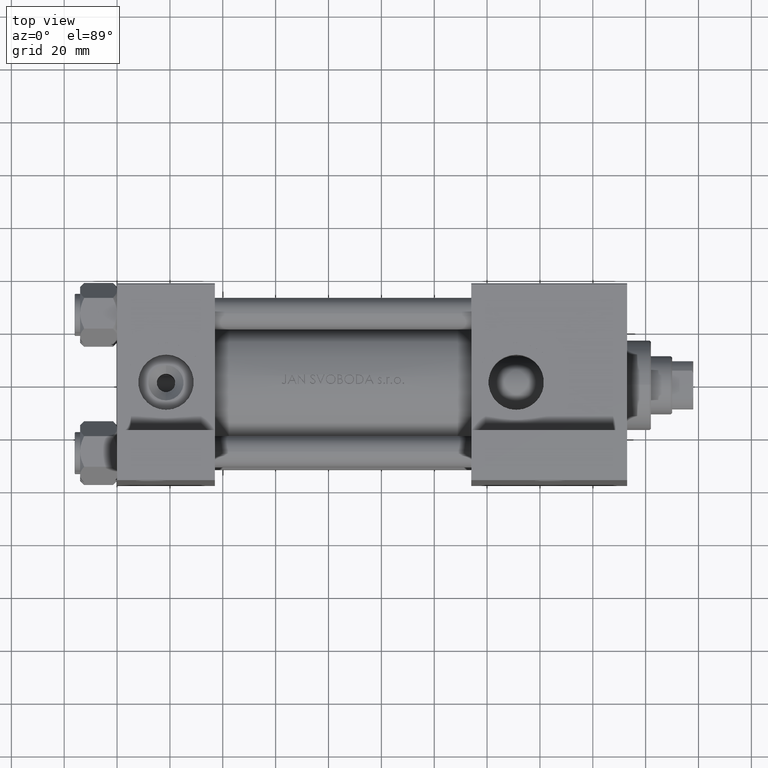
[diagram: clean part render]
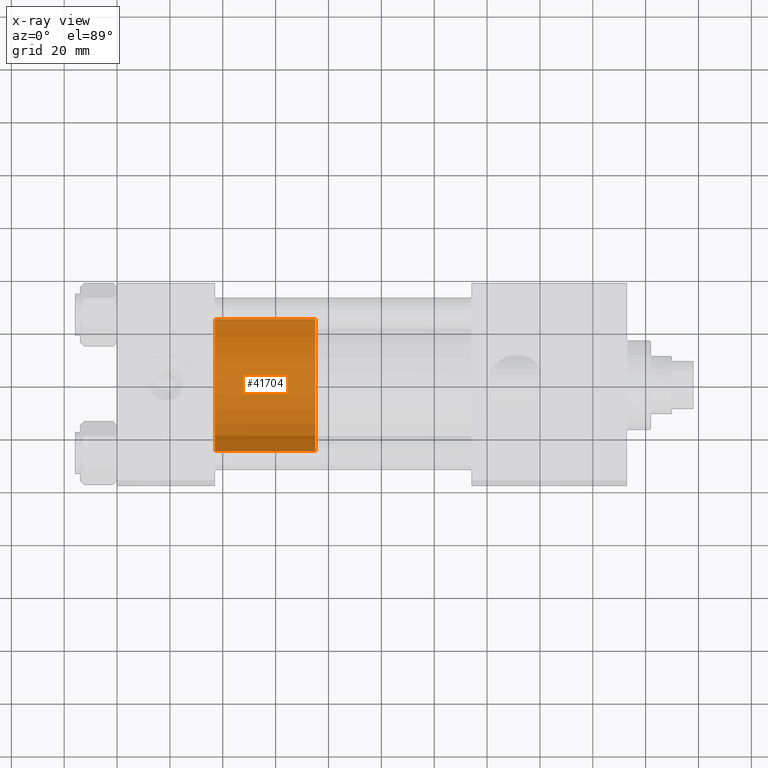
[diagram: x-ray — body ghosted, one internal face saturated and labeled with its STEP entity id]
A machine part, top view, then the same camera in x-ray: the body is ghosted and one INTERNAL B-rep face — a face not visible from any outside direction — is saturated and labeled: STEP entity #41704.
In plain terms, the highlighted cylindrical surface (partial cylindrical patch) has radius 25 mm, axis along (-1, 0, 0).
Its self-contained STEP definition (entity closure, byte-faithful):
#1890 = VERTEX_POINT ( 'NONE', #19047 ) ;
#2265 = CARTESIAN_POINT ( 'NONE',  ( -25.00000000000000000, 0.000000000000000000, 38.00000000000000000 ) ) ;
#4169 = DIRECTION ( 'NONE',  ( 1.000000000000000000, 0.000000000000000000, 0.000000000000000000 ) ) ;
#7254 = DIRECTION ( 'NONE',  ( -0.000000000000000000, -0.000000000000000000, -1.000000000000000000 ) ) ;
#8603 = CARTESIAN_POINT ( 'NONE',  ( 0.000000000000000000, 0.000000000000000000, 38.00000000000000000 ) ) ;
#10233 = LINE ( 'NONE', #2265, #17554 ) ;
#11240 = AXIS2_PLACEMENT_3D ( 'NONE', #19830, #35054, #4169 ) ;
#11268 = EDGE_CURVE ( 'NONE', #26219, #34314, #26096, .T. ) ;
#12834 = DIRECTION ( 'NONE',  ( 1.000000000000000000, 0.000000000000000000, 0.000000000000000000 ) ) ;
#15113 = EDGE_CURVE ( 'NONE', #1890, #28126, #10233, .T. ) ;
#15766 = EDGE_CURVE ( 'NONE', #34314, #28126, #18383, .T. ) ;
#17554 = VECTOR ( 'NONE', #39634, 1000.000000000000000 ) ;
#17621 = ORIENTED_EDGE ( 'NONE', *, *, #15766, .T. ) ;
#18383 = CIRCLE ( 'NONE', #11240, 25.00000000000000000 ) ;
#18599 = DIRECTION ( 'NONE',  ( -0.000000000000000000, -0.000000000000000000, -1.000000000000000000 ) ) ;
#18935 = CARTESIAN_POINT ( 'NONE',  ( 0.000000000000000000, 0.000000000000000000, 38.00000000000000000 ) ) ;
#19047 = CARTESIAN_POINT ( 'NONE',  ( -25.00000000000000000, 0.000000000000000000, 38.00000000000000000 ) ) ;
#19830 = CARTESIAN_POINT ( 'NONE',  ( 0.000000000000000000, 0.000000000000000000, 0.000000000000000000 ) ) ;
#21710 = ORIENTED_EDGE ( 'NONE', *, *, #15113, .F. ) ;
#22531 = CARTESIAN_POINT ( 'NONE',  ( -25.00000000000000000, 0.000000000000000000, 0.000000000000000000 ) ) ;
#22930 = CYLINDRICAL_SURFACE ( 'NONE', #45187, 25.00000000000000000 ) ;
#23931 = AXIS2_PLACEMENT_3D ( 'NONE', #8603, #24056, #12834 ) ;
#24056 = DIRECTION ( 'NONE',  ( 0.000000000000000000, 0.000000000000000000, 1.000000000000000000 ) ) ;
#24193 = EDGE_LOOP ( 'NONE', ( #44148, #31703, #17621, #21710 ) ) ;
#26096 = LINE ( 'NONE', #41284, #32577 ) ;
#26219 = VERTEX_POINT ( 'NONE', #29882 ) ;
#28126 = VERTEX_POINT ( 'NONE', #22531 ) ;
#29882 = CARTESIAN_POINT ( 'NONE',  ( 25.00000000000000000, 3.061616997868383043E-15, 38.00000000000000000 ) ) ;
#31703 = ORIENTED_EDGE ( 'NONE', *, *, #11268, .T. ) ;
#31899 = CIRCLE ( 'NONE', #23931, 25.00000000000000000 ) ;
#32577 = VECTOR ( 'NONE', #18599, 1000.000000000000000 ) ;
#34314 = VERTEX_POINT ( 'NONE', #48892 ) ;
#35054 = DIRECTION ( 'NONE',  ( 0.000000000000000000, 0.000000000000000000, 1.000000000000000000 ) ) ;
#39634 = DIRECTION ( 'NONE',  ( -0.000000000000000000, -0.000000000000000000, -1.000000000000000000 ) ) ;
#40876 = FACE_OUTER_BOUND ( 'NONE', #24193, .T. ) ;
#41284 = CARTESIAN_POINT ( 'NONE',  ( 25.00000000000000000, 3.061616997868383043E-15, 38.00000000000000000 ) ) ;
#41704 = ADVANCED_FACE ( 'NONE', ( #40876 ), #22930, .T. ) ;
#44148 = ORIENTED_EDGE ( 'NONE', *, *, #48761, .F. ) ;
#45099 = DIRECTION ( 'NONE',  ( -1.000000000000000000, 0.000000000000000000, 0.000000000000000000 ) ) ;
#45187 = AXIS2_PLACEMENT_3D ( 'NONE', #18935, #7254, #45099 ) ;
#48761 = EDGE_CURVE ( 'NONE', #26219, #1890, #31899, .T. ) ;
#48892 = CARTESIAN_POINT ( 'NONE',  ( 25.00000000000000000, 3.061616997868383043E-15, 0.000000000000000000 ) ) ;